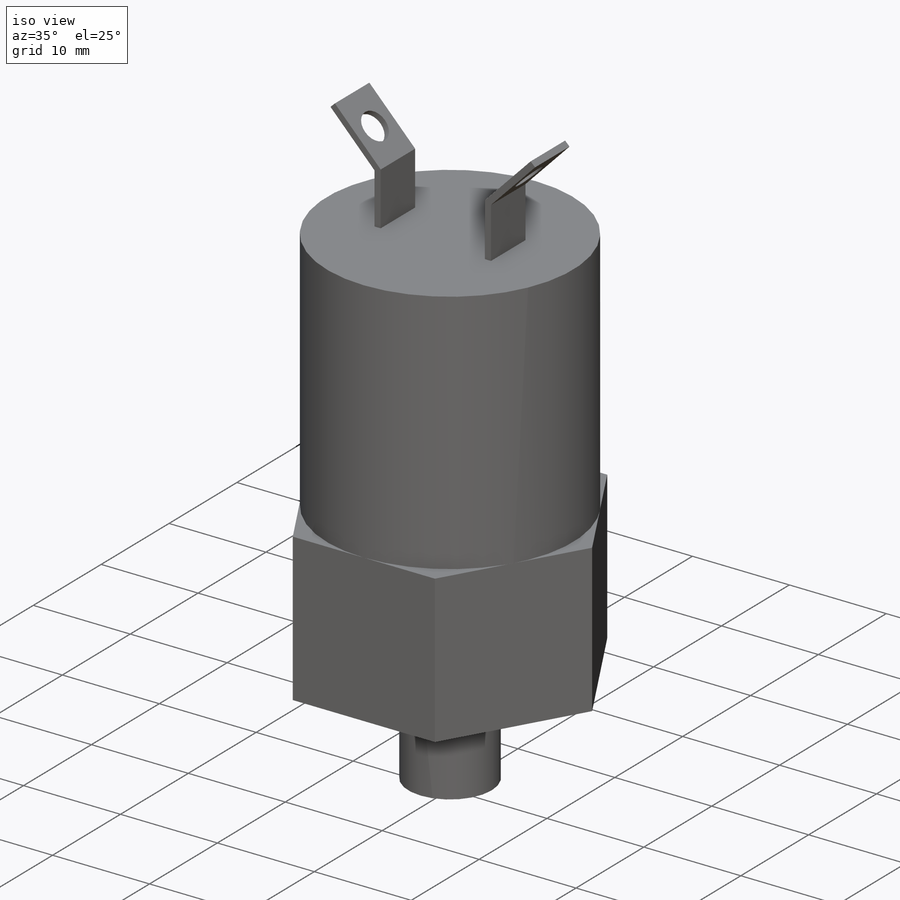
[diagram: iso view]
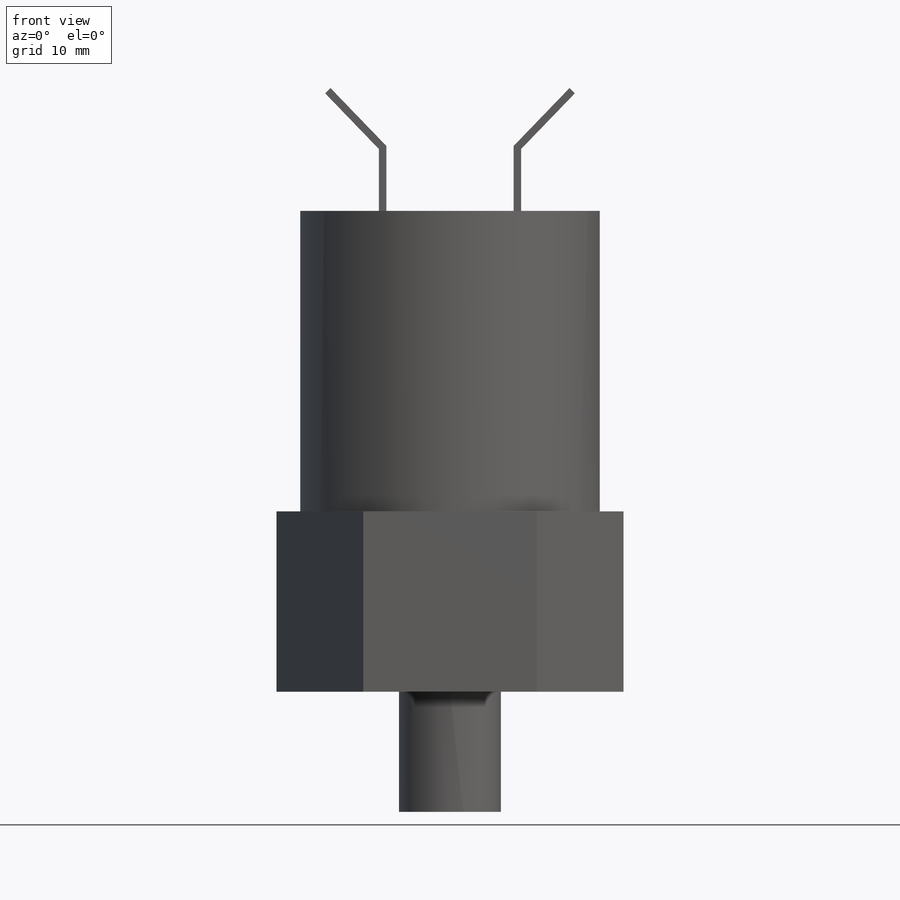
[diagram: front view]
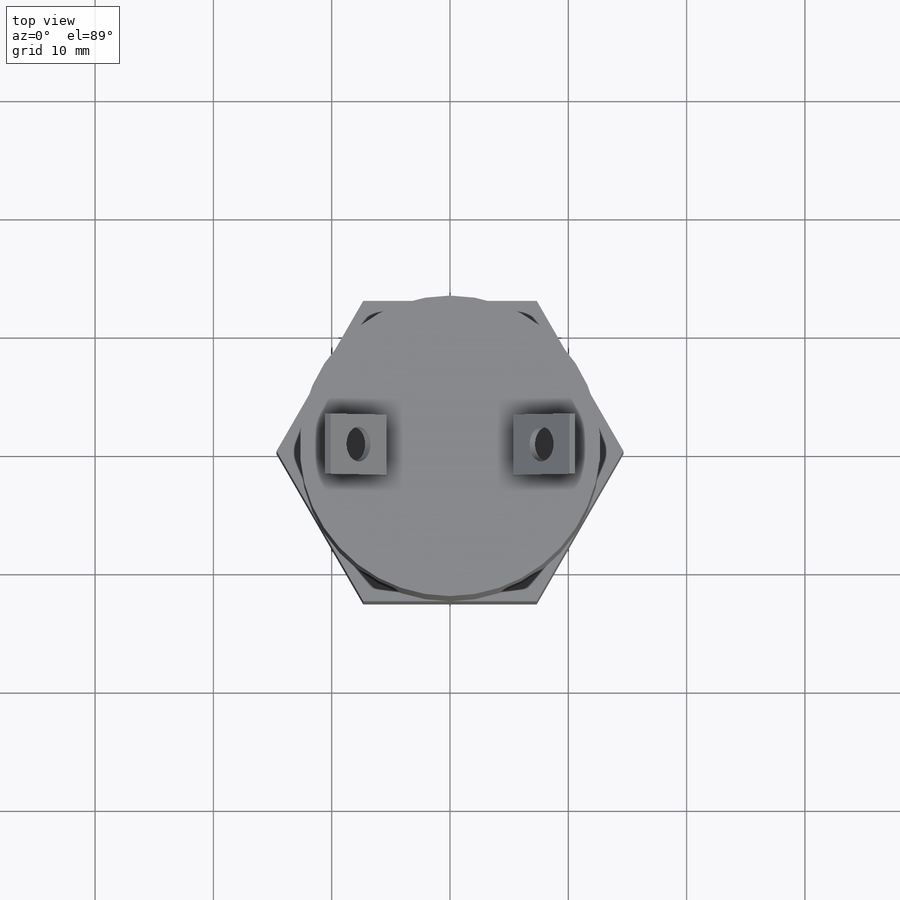
[diagram: top view]
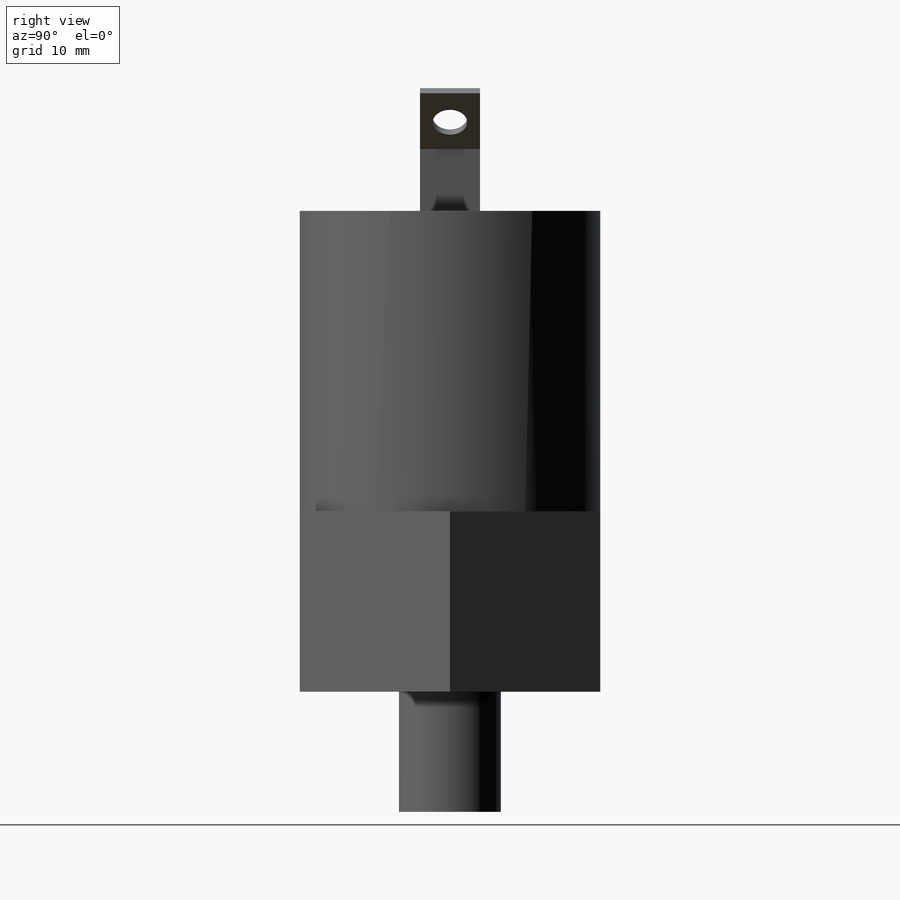
[diagram: right view]
SOLIDWORKS PART (.sldprt)
format: sldprt  version: not decoded by parser v0  size: 203,776 bytes
history: native  units: mm
features: sketch x5, extrude x3, material x1, thread x1, cut_extrude x1, mirror x1 (+13 scaffold rows collapsed)
feature tree (25):
  scaffold x13  (default folders/planes/origin — collapsed)
  material  "Material <not specified>"
  sketch  "Sketch2"  dims[D1=25.4mm]
  extrude  "Boss-Extrude1"  Depth=15.24mm
  sketch  "Sketch3"  dims[D1=25.4mm]
  extrude  "Boss-Extrude2"  Depth=25.4mm
  sketch  "Sketch4"  dims[D1=8.6106mm]
  extrude  "Boss-Extrude3"  [1 undecoded]
  thread  "Cosmetic Thread2"  Diameter=7.6106mm  [1 undecoded]
  sketch  "Sketch5"  dims[c1.D1=10.16mm c2.D1=5.08mm c2.D5=0.635mm c2.D6=2.54mm c2.D7=5.0mm]
  sketch  "Sketch6"  dims[D1=2.54mm]
  cut_extrude  "Cut-Extrude1"  [1 undecoded]
  mirror  "Mirror1"
decode coverage: 8 of 11 modeling features carry decoded parameters
note: 3 parameter values undecoded
note: suppression state not decoded; provenance and decode notes live in map.json
